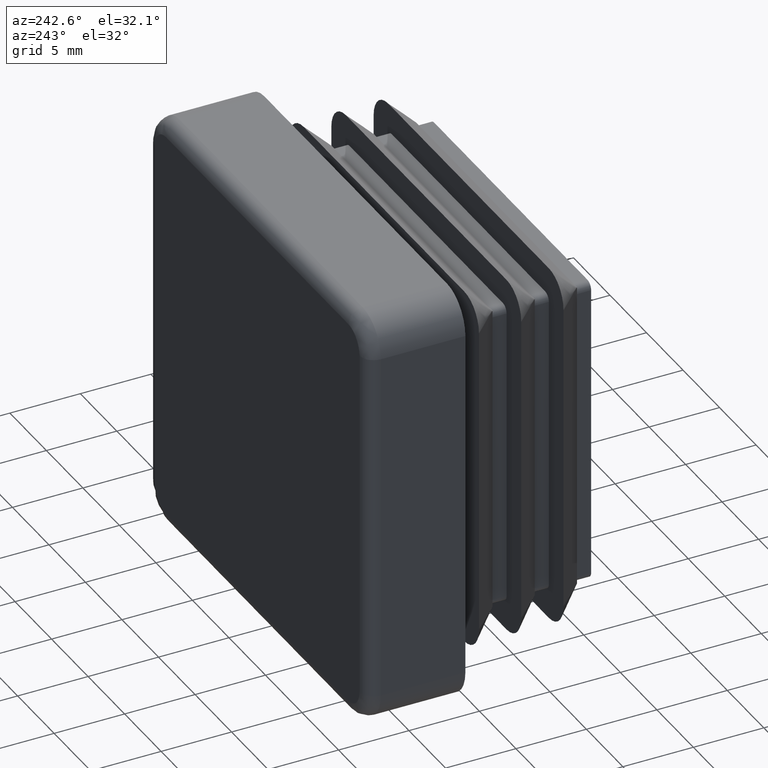
[diagram: clean part render]
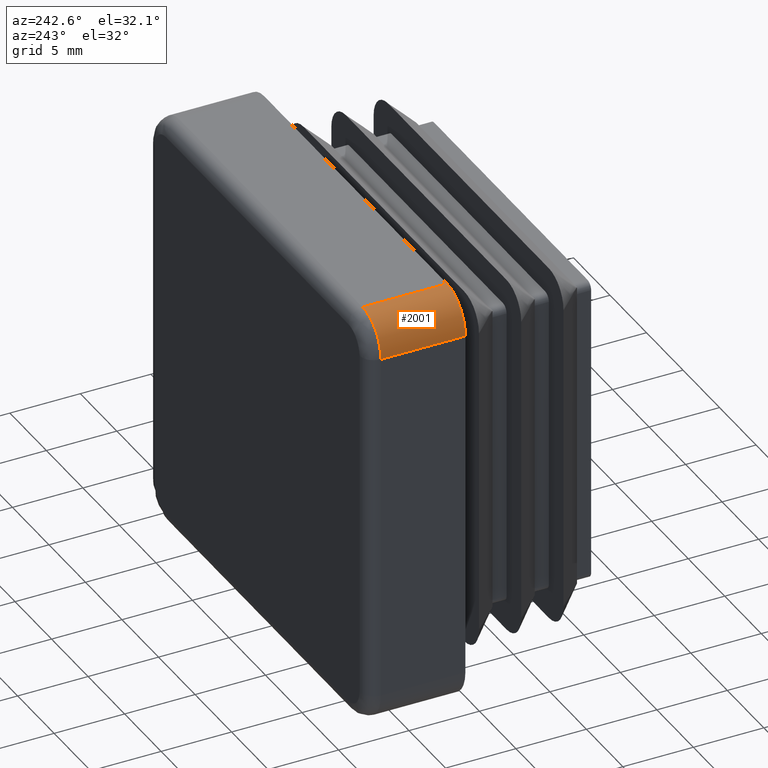
[diagram: same view with one face highlighted and labeled with its STEP entity id]
A machine part, auxiliary view. The second image highlights one B-rep face of the part: STEP entity #2001.
In plain terms, the highlighted cylindrical surface (partial cylindrical patch) has radius 2.5 mm, axis along (0, -1, 0).
Its self-contained STEP definition (entity closure, byte-faithful):
#1960=CARTESIAN_POINT('',(-12.499999999999996,17.000000009999994,12.499999999999996));
#1961=DIRECTION('',(0.0,-1.0,0.0));
#1962=DIRECTION('',(0.0,0.0,-1.0));
#1963=AXIS2_PLACEMENT_3D('',#1960,#1961,#1962);
#1964=CYLINDRICAL_SURFACE('',#1963,2.500000000000001);
#1965=CARTESIAN_POINT('',(-12.499999999999980,16.999999999999993,15.0));
#1966=VERTEX_POINT('',#1965);
#1967=CARTESIAN_POINT('',(-12.499999999999980,11.0,15.0));
#1968=VERTEX_POINT('',#1967);
#1969=CARTESIAN_POINT('',(-12.499999999999980,16.999999999999993,15.0));
#1970=DIRECTION('',(0.0,-1.0,0.0));
#1971=VECTOR('',#1970,5.999999999999993);
#1972=LINE('',#1969,#1971);
#1973=EDGE_CURVE('',#1966,#1968,#1972,.T.);
#1974=ORIENTED_EDGE('',*,*,#1973,.F.);
#1975=CARTESIAN_POINT('',(-14.999999999999995,16.999999999999993,12.499999999999982));
#1976=VERTEX_POINT('',#1975);
#1977=CARTESIAN_POINT('',(-12.499999999999996,16.999999999999993,12.499999999999996));
#1978=DIRECTION('',(0.0,-1.0,0.0));
#1979=DIRECTION('',(0.0,0.0,-1.0));
#1980=AXIS2_PLACEMENT_3D('',#1977,#1978,#1979);
#1981=CIRCLE('',#1980,2.500000000000001);
#1982=EDGE_CURVE('',#1966,#1976,#1981,.T.);
#1983=ORIENTED_EDGE('',*,*,#1982,.T.);
#1984=CARTESIAN_POINT('',(-14.999999999999995,11.0,12.499999999999982));
#1985=VERTEX_POINT('',#1984);
#1986=CARTESIAN_POINT('',(-14.999999999999995,16.999999999999993,12.499999999999982));
#1987=DIRECTION('',(0.0,-1.0,0.0));
#1988=VECTOR('',#1987,5.999999999999993);
#1989=LINE('',#1986,#1988);
#1990=EDGE_CURVE('',#1976,#1985,#1989,.T.);
#1991=ORIENTED_EDGE('',*,*,#1990,.T.);
#1992=CARTESIAN_POINT('',(-12.499999999999996,11.0,12.499999999999996));
#1993=DIRECTION('',(0.0,1.0,0.0));
#1994=DIRECTION('',(0.0,0.0,1.0));
#1995=AXIS2_PLACEMENT_3D('',#1992,#1993,#1994);
#1996=CIRCLE('',#1995,2.500000000000001);
#1997=EDGE_CURVE('',#1985,#1968,#1996,.T.);
#1998=ORIENTED_EDGE('',*,*,#1997,.T.);
#1999=EDGE_LOOP('',(#1974,#1983,#1991,#1998));
#2000=FACE_OUTER_BOUND('',#1999,.T.);
#2001=ADVANCED_FACE('',(#2000),#1964,.T.);